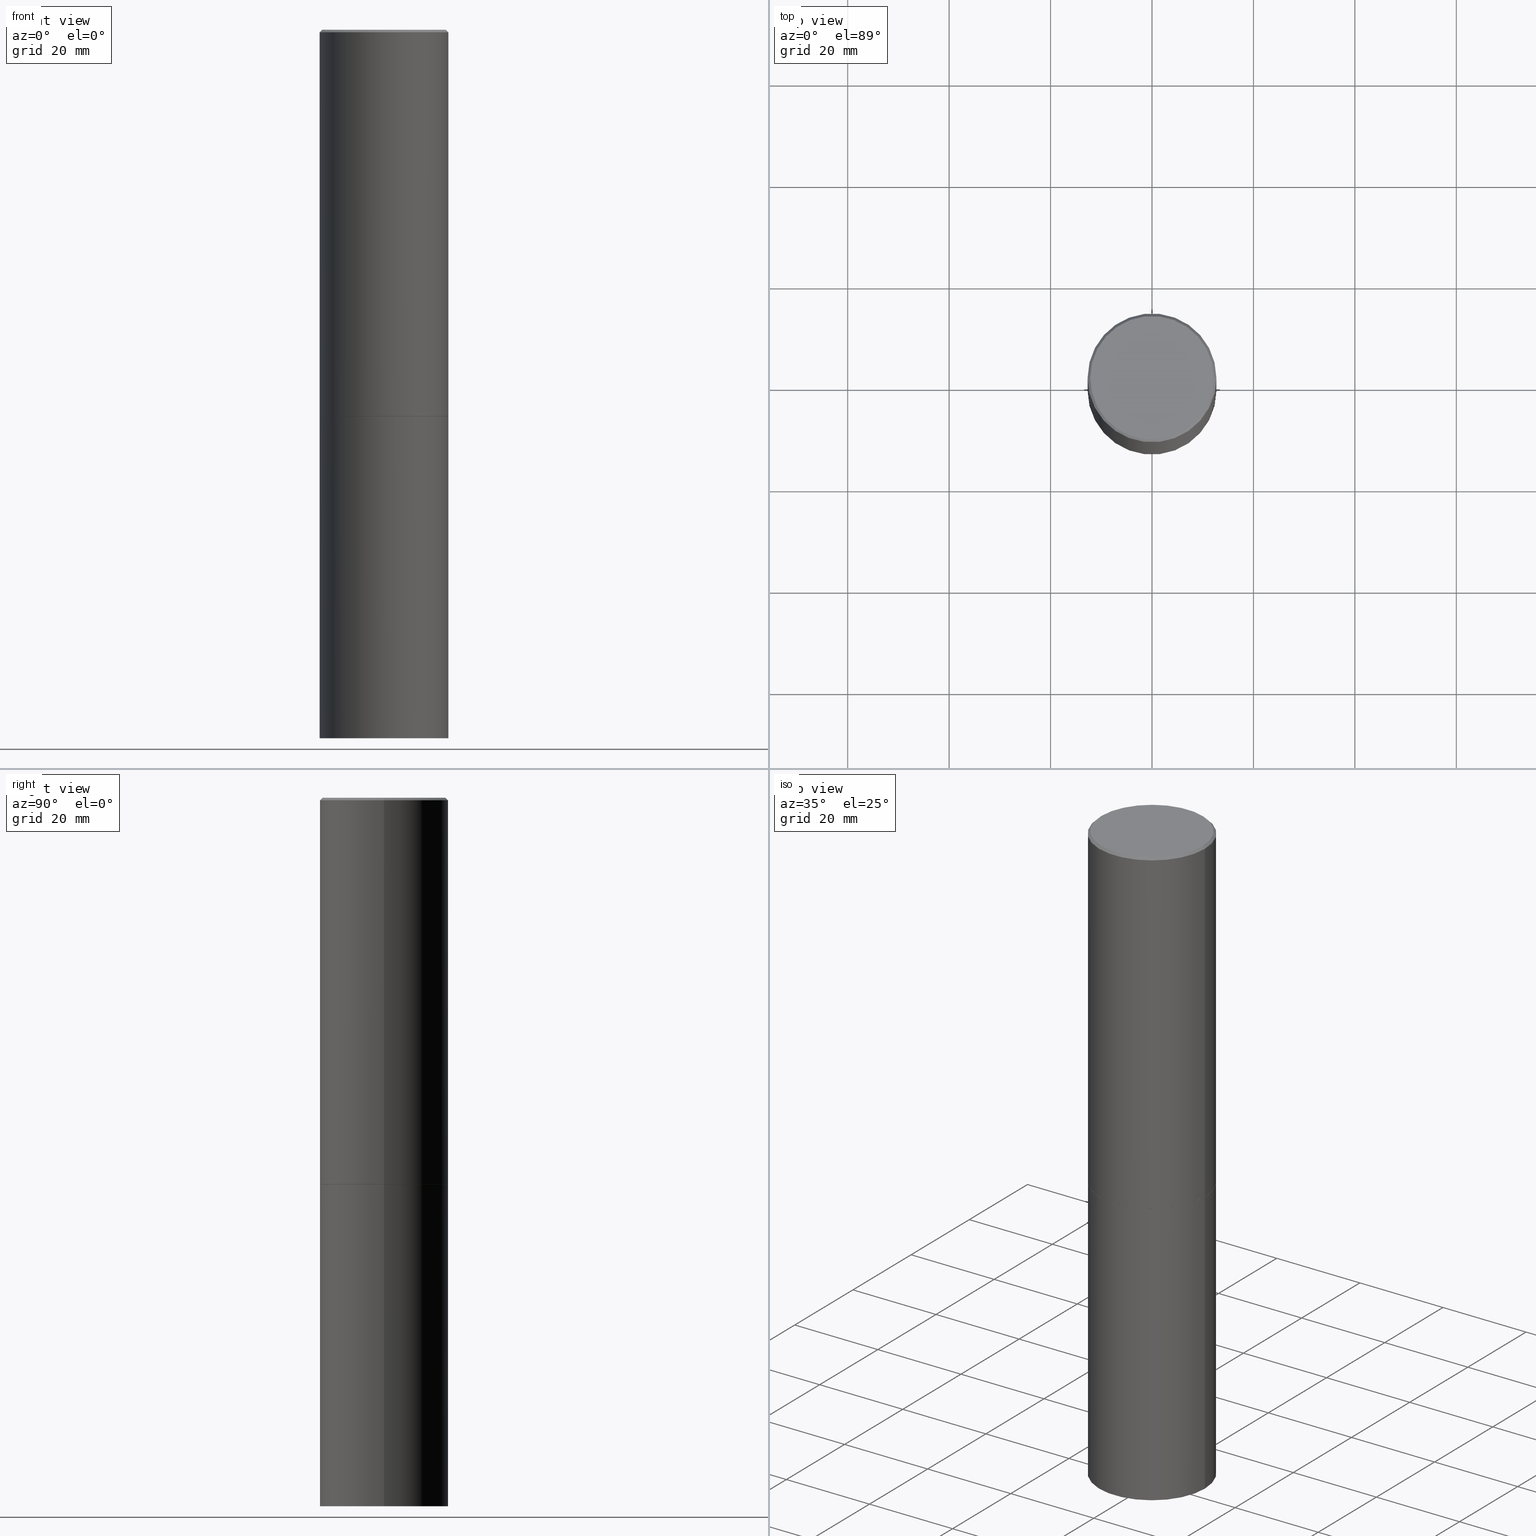
[diagram: canonical four-view strip — front | top / right | iso, engineering-drawing reading convention]
A machine part, canonical four-view strip (front | top / right | iso — engineering-drawing reading convention). The complete STEP part file that produces these views, byte-faithful:
ISO-10303-21;
HEADER;
FILE_DESCRIPTION (( 'STEP AP203' ),
    '1' );
FILE_NAME ('77293.STEP',
    '2024-02-29T18:16:07',
    ( '' ),
    ( '' ),
    'SwSTEP 2.0',
    'SolidWorks 2023',
    '' );
FILE_SCHEMA (( 'CONFIG_CONTROL_DESIGN' ));
ENDSEC;

DATA;
#1 = DATE_TIME_ROLE ( 'creation_date' ) ;
#2 = ORIENTED_EDGE ( 'NONE', *, *, #110, .T. ) ;
#3 = EDGE_CURVE ( 'NONE', #246, #50, #339, .T. ) ;
#4 = CIRCLE ( 'NONE', #21, 0.4999999999999997224 ) ;
#5 = CARTESIAN_POINT ( 'NONE',  ( 4.890937612370304688E-31, -6.982962677686335982E-17, -0.02000000000000012879 ) ) ;
#6 = FACE_OUTER_BOUND ( 'NONE', #57, .T. ) ;
#7 = ADVANCED_FACE ( 'NONE', ( #165 ), #28, .T. ) ;
#8 = CARTESIAN_POINT ( 'NONE',  ( 0.5000000000000000000, -3.491481338843133355E-15, 2.438088387897967896E-29 ) ) ;
#9 = FACE_OUTER_BOUND ( 'NONE', #107, .T. ) ;
#10 = CC_DESIGN_APPROVAL ( #146, ( #317 ) ) ;
#11 = CARTESIAN_POINT ( 'NONE',  ( -0.4799999999999996492, 3.386736898677836830E-15, 1.280553747027767124E-17 ) ) ;
#12 = CC_DESIGN_PERSON_AND_ORGANIZATION_ASSIGNMENT ( #79, #197, ( #296 ) ) ;
#13 = DIRECTION ( 'NONE',  ( -2.445468806185136597E-29, 3.491481338843145583E-15, 1.000000000000000000 ) ) ;
#14 = DIRECTION ( 'NONE',  ( -2.438088387897960049E-29, 3.491481338843145188E-15, 1.000000000000000000 ) ) ;
#15 = VECTOR ( 'NONE', #347, 39.37007874015748854 ) ;
#16 = LOCAL_TIME ( 13, 16, 7.000000000000000000, #277 ) ;
#17 = CARTESIAN_POINT ( 'NONE',  ( 0.4999999999999998335, -3.491481338843132566E-15, 2.438088387897967336E-29 ) ) ;
#18 = CC_DESIGN_PERSON_AND_ORGANIZATION_ASSIGNMENT ( #56, #310, ( #134 ) ) ;
#19 = CARTESIAN_POINT ( 'NONE',  ( 0.000000000000000000, 0.000000000000000000, 0.000000000000000000 ) ) ;
#20 = CARTESIAN_POINT ( 'NONE',  ( 3.491481338843206325E-15, 0.4999999999999895639, -3.000000000000001332 ) ) ;
#21 = AXIS2_PLACEMENT_3D ( 'NONE', #5, #89, #140 ) ;
#22 = APPROVAL_PERSON_ORGANIZATION ( #304, #326, #190 ) ;
#23 = DATE_AND_TIME ( #169, #349 ) ;
#24 = ORIENTED_EDGE ( 'NONE', *, *, #151, .T. ) ;
#25 = APPROVAL_DATE_TIME ( #23, #52 ) ;
#26 = VERTEX_POINT ( 'NONE', #60 ) ;
#27 = PERSON_AND_ORGANIZATION ( #144, #68 ) ;
#28 = CYLINDRICAL_SURFACE ( 'NONE', #336, 0.5000000000000000000 ) ;
#29 = CIRCLE ( 'NONE', #313, 0.5000000000000000000 ) ;
#30 = AXIS2_PLACEMENT_3D ( 'NONE', #156, #13, #236 ) ;
#31 = PERSON_AND_ORGANIZATION ( #144, #68 ) ;
#32 = VERTEX_POINT ( 'NONE', #11 ) ;
#33 = PERSON_AND_ORGANIZATION ( #144, #68 ) ;
#34 = EDGE_CURVE ( 'NONE', #198, #278, #122, .T. ) ;
#35 = VERTEX_POINT ( 'NONE', #40 ) ;
#36 = CARTESIAN_POINT ( 'NONE',  ( 0.4989999999999999991, -1.395894239269488369E-14, -2.999999999999999556 ) ) ;
#37 = CARTESIAN_POINT ( 'NONE',  ( -0.4999999999999998335, 3.552713678800499746E-15, -2.459467545127452330E-29 ) ) ;
#38 = CONICAL_SURFACE ( 'NONE', #125, 0.4989999999999999991, 0.7853981633978239785 ) ;
#39 = CARTESIAN_POINT ( 'NONE',  ( 3.351822085289405181E-15, 0.4799999999999996492, -1.669508273909558064E-15 ) ) ;
#40 = CARTESIAN_POINT ( 'NONE',  ( 0.4999999999999997224, -3.500078625662627502E-15, -0.02000000000000012879 ) ) ;
#41 = DIRECTION ( 'NONE',  ( -1.000000000000000000, 6.982962677686265922E-15, -4.876176775795935793E-29 ) ) ;
#42 = FACE_OUTER_BOUND ( 'NONE', #283, .T. ) ;
#43 = EDGE_CURVE ( 'NONE', #129, #364, #29, .T. ) ;
#44 = CARTESIAN_POINT ( 'NONE',  ( -0.4989999999999999991, -6.923537310738314819E-15, -2.999999999999999556 ) ) ;
#45 = DIRECTION ( 'NONE',  ( -2.445468806185136597E-29, 3.491481338843145583E-15, 1.000000000000000000 ) ) ;
#46 = AXIS2_PLACEMENT_3D ( 'NONE', #90, #92, #149 ) ;
#47 = ADVANCED_FACE ( 'NONE', ( #6 ), #359, .T. ) ;
#48 = DIRECTION ( 'NONE',  ( 1.000000000000000000, -6.982962677686269077E-15, 0.000000000000000000 ) ) ;
#49 = DIRECTION ( 'NONE',  ( -2.445468806185136597E-29, 3.491481338843145583E-15, 1.000000000000000000 ) ) ;
#50 = VERTEX_POINT ( 'NONE', #258 ) ;
#51 = SHAPE_DEFINITION_REPRESENTATION ( #189, #157 ) ;
#52 = APPROVAL ( #282, 'UNSPECIFIED' ) ;
#53 = CALENDAR_DATE ( 2024, 29, 2 ) ;
#54 = EDGE_LOOP ( 'NONE', ( #254, #130, #343, #332 ) ) ;
#55 = DIRECTION ( 'NONE',  ( -0.7071067811868130271, 7.493145998871311837E-15, 0.7071067811862817853 ) ) ;
#56 = PERSON_AND_ORGANIZATION ( #144, #68 ) ;
#57 = EDGE_LOOP ( 'NONE', ( #161, #266, #77, #225 ) ) ;
#58 = PERSON_AND_ORGANIZATION ( #144, #68 ) ;
#59 = ORIENTED_EDGE ( 'NONE', *, *, #204, .F. ) ;
#60 = CARTESIAN_POINT ( 'NONE',  ( 0.5000000000000000000, -2.269462870248043307E-14, -5.500000000000000000 ) ) ;
#61 = CARTESIAN_POINT ( 'NONE',  ( 0.000000000000000000, 0.000000000000000000, 0.000000000000000000 ) ) ;
#62 = SECURITY_CLASSIFICATION ( '', '', #280 ) ;
#63 = DIRECTION ( 'NONE',  ( -2.445468806185136877E-29, 3.491481338843145188E-15, 1.000000000000000000 ) ) ;
#64 = DIRECTION ( 'NONE',  ( -1.000000000000000000, 6.982962677686266711E-15, 0.000000000000000000 ) ) ;
#65 = DIRECTION ( 'NONE',  ( -2.445468806185136597E-29, 3.491481338843145583E-15, 1.000000000000000000 ) ) ;
#66 = EDGE_CURVE ( 'NONE', #50, #137, #260, .T. ) ;
#67 = LINE ( 'NONE', #17, #273 ) ;
#68 = ORGANIZATION ( 'UNSPECIFIED', 'UNSPECIFIED', '' ) ;
#69 = CARTESIAN_POINT ( 'NONE',  ( -0.4999999999999997224, 3.421651712066268085E-15, -0.02000000000000012879 ) ) ;
#70 = CARTESIAN_POINT ( 'NONE',  ( -3.131554243005659264E-46, 4.471029511141341874E-32, 1.280553747030123384E-17 ) ) ;
#71 = CARTESIAN_POINT ( 'NONE',  ( 0.5000000000000000000, -1.396243387403372828E-14, -2.999000000000000554 ) ) ;
#72 = DIRECTION ( 'NONE',  ( -2.445468806185136597E-29, 3.491481338843145583E-15, 1.000000000000000000 ) ) ;
#73 = ORIENTED_EDGE ( 'NONE', *, *, #180, .T. ) ;
#74 = DATE_AND_TIME ( #136, #102 ) ;
#75 = DIMENSIONAL_EXPONENTS ( 1.000000000000000000, 0.000000000000000000, 0.000000000000000000, 0.000000000000000000, 0.000000000000000000, 0.000000000000000000, 0.000000000000000000 ) ;
#76 = APPROVAL_STATUS ( 'not_yet_approved' ) ;
#77 = ORIENTED_EDGE ( 'NONE', *, *, #235, .T. ) ;
#78 = AXIS2_PLACEMENT_3D ( 'NONE', #211, #45, #355 ) ;
#79 = PERSON_AND_ORGANIZATION ( #144, #68 ) ;
#80 = DESIGN_CONTEXT ( 'detailed design', #162, 'design' ) ;
#81 = CARTESIAN_POINT ( 'NONE',  ( -0.4989999999999999991, -6.928835765086534855E-15, -2.999999999999999556 ) ) ;
#82 = ORIENTED_EDGE ( 'NONE', *, *, #163, .F. ) ;
#83 = ADVANCED_FACE ( 'NONE', ( #206 ), #286, .T. ) ;
#84 = MECHANICAL_CONTEXT ( 'NONE', #142, 'mechanical' ) ;
#85 = ORIENTED_EDGE ( 'NONE', *, *, #66, .T. ) ;
#86 = VECTOR ( 'NONE', #63, 39.37007874015748143 ) ;
#87 = ORIENTED_EDGE ( 'NONE', *, *, #34, .T. ) ;
#88 = PRODUCT_RELATED_PRODUCT_CATEGORY ( 'detail', '', ( #296 ) ) ;
#89 = DIRECTION ( 'NONE',  ( -2.445468806185136597E-29, 3.491481338843145583E-15, 1.000000000000000000 ) ) ;
#90 = CARTESIAN_POINT ( 'NONE',  ( 7.336406418555408669E-29, -1.047444401652943478E-14, -2.999999999999999556 ) ) ;
#91 = CARTESIAN_POINT ( 'NONE',  ( 4.890937612370304688E-31, -6.982962677686335982E-17, -0.02000000000000012879 ) ) ;
#92 = DIRECTION ( 'NONE',  ( -2.445468806185136597E-29, 3.491481338843145583E-15, 1.000000000000000000 ) ) ;
#93 = ADVANCED_FACE ( 'NONE', ( #120 ), #94, .F. ) ;
#94 = PLANE ( 'NONE',  #232 ) ;
#95 =( CONVERSION_BASED_UNIT ( 'INCH', #352 ) LENGTH_UNIT ( ) NAMED_UNIT ( #75 ) );
#96 = AXIS2_PLACEMENT_3D ( 'NONE', #229, #143, #288 ) ;
#97 = CIRCLE ( 'NONE', #194, 0.4799999999999996492 ) ;
#98 = EDGE_CURVE ( 'NONE', #26, #129, #233, .T. ) ;
#99 = LINE ( 'NONE', #69, #287 ) ;
#100 = CARTESIAN_POINT ( 'NONE',  ( 7.333960949749226429E-29, -1.047095253519059492E-14, -2.999000000000000554 ) ) ;
#101 = DIRECTION ( 'NONE',  ( -2.445468806185136597E-29, 3.491481338843145583E-15, 1.000000000000000000 ) ) ;
#102 = LOCAL_TIME ( 13, 16, 7.000000000000000000, #275 ) ;
#103 = CARTESIAN_POINT ( 'NONE',  ( 7.336406418555408669E-29, -1.047444401652943478E-14, -2.999999999999999556 ) ) ;
#104 = ADVANCED_FACE ( 'NONE', ( #176 ), #350, .T. ) ;
#105 = DATE_AND_TIME ( #365, #268 ) ;
#106 = ORIENTED_EDGE ( 'NONE', *, *, #110, .F. ) ;
#107 = EDGE_LOOP ( 'NONE', ( #59, #306, #2, #193 ) ) ;
#108 = AXIS2_PLACEMENT_3D ( 'NONE', #91, #172, #64 ) ;
#109 = CC_DESIGN_SECURITY_CLASSIFICATION ( #62, ( #134 ) ) ;
#110 = EDGE_CURVE ( 'NONE', #35, #137, #4, .T. ) ;
#111 = CARTESIAN_POINT ( 'NONE',  ( 0.000000000000000000, 0.000000000000000000, 0.000000000000000000 ) ) ;
#112 = APPROVAL_DATE_TIME ( #105, #326 ) ;
#113 = EDGE_LOOP ( 'NONE', ( #247, #311, #220, #281 ) ) ;
#114 = ORIENTED_EDGE ( 'NONE', *, *, #3, .T. ) ;
#115 = CC_DESIGN_DATE_AND_TIME_ASSIGNMENT ( #195, #1, ( #317 ) ) ;
#116 = LINE ( 'NONE', #290, #241 ) ;
#117 = DIRECTION ( 'NONE',  ( -1.000000000000000000, 6.982962677686266711E-15, 0.000000000000000000 ) ) ;
#118 = DIRECTION ( 'NONE',  ( -2.445468806185136597E-29, 3.491481338843145583E-15, 1.000000000000000000 ) ) ;
#119 = CIRCLE ( 'NONE', #338, 0.5000000000000000000 ) ;
#120 = FACE_OUTER_BOUND ( 'NONE', #276, .T. ) ;
#121 = CC_DESIGN_PERSON_AND_ORGANIZATION_ASSIGNMENT ( #31, #253, ( #62 ) ) ;
#122 = LINE ( 'NONE', #36, #15 ) ;
#123 = EDGE_CURVE ( 'NONE', #222, #35, #116, .T. ) ;
#124 = CLOSED_SHELL ( 'NONE', ( #7, #83, #309, #244 ) ) ;
#125 = AXIS2_PLACEMENT_3D ( 'NONE', #324, #264, #255 ) ;
#126 = CARTESIAN_POINT ( 'NONE',  ( 7.336406418555408669E-29, -1.047444401652943478E-14, -2.999999999999999556 ) ) ;
#127 = DIRECTION ( 'NONE',  ( -2.445468806185136597E-29, 3.491481338843145583E-15, 1.000000000000000000 ) ) ;
#128 = PLANE ( 'NONE',  #305 ) ;
#129 = VERTEX_POINT ( 'NONE', #320 ) ;
#130 = ORIENTED_EDGE ( 'NONE', *, *, #218, .T. ) ;
#131 = EDGE_CURVE ( 'NONE', #364, #129, #303, .T. ) ;
#132 = DIRECTION ( 'NONE',  ( 0.000000000000000000, 0.000000000000000000, 1.000000000000000000 ) ) ;
#133 = AXIS2_PLACEMENT_3D ( 'NONE', #178, #351, #117 ) ;
#134 = PRODUCT_DEFINITION_FORMATION_WITH_SPECIFIED_SOURCE ( 'ANY', '', #296, .NOT_KNOWN. ) ;
#135 = MANIFOLD_SOLID_BREP ( 'Body-Move/Copy2[2]', #159 ) ;
#136 = CALENDAR_DATE ( 2024, 29, 2 ) ;
#137 = VERTEX_POINT ( 'NONE', #177 ) ;
#138 = PERSON_AND_ORGANIZATION ( #144, #68 ) ;
#139 = ORIENTED_EDGE ( 'NONE', *, *, #238, .F. ) ;
#140 = DIRECTION ( 'NONE',  ( 1.000000000000000000, -6.982962677686266711E-15, 0.000000000000000000 ) ) ;
#141 = APPROVAL_PERSON_ORGANIZATION ( #27, #52, #272 ) ;
#142 = APPLICATION_CONTEXT ( 'configuration controlled 3d designs of mechanical parts and assemblies' ) ;
#143 = DIRECTION ( 'NONE',  ( 2.438088387897960049E-29, -3.491481338843145188E-15, -1.000000000000000000 ) ) ;
#144 = PERSON ( 'UNSPECIFIED', 'UNSPECIFIED', 'UNSPECIFIED', ('UNSPECIFIED'), ('UNSPECIFIED'), ('UNSPECIFIED') ) ;
#145 = CARTESIAN_POINT ( 'NONE',  ( 7.336406418555408669E-29, -1.047444401652943478E-14, -2.999999999999999556 ) ) ;
#146 = APPROVAL ( #76, 'UNSPECIFIED' ) ;
#147 = DIRECTION ( 'NONE',  ( 1.000000000000000000, -6.982962677686262766E-15, 0.000000000000000000 ) ) ;
#148 = CC_DESIGN_APPROVAL ( #326, ( #62 ) ) ;
#149 = DIRECTION ( 'NONE',  ( 1.000000000000000000, -6.982962677686269077E-15, 0.000000000000000000 ) ) ;
#150 = CARTESIAN_POINT ( 'NONE',  ( -0.5000000000000000000, -1.128608201128286632E-14, -2.999999999999999556 ) ) ;
#151 = EDGE_CURVE ( 'NONE', #26, #196, #209, .T. ) ;
#152 = DIRECTION ( 'NONE',  ( 1.000000000000000000, -6.982962677686262766E-15, 0.000000000000000000 ) ) ;
#153 = FACE_OUTER_BOUND ( 'NONE', #113, .T. ) ;
#154 = CYLINDRICAL_SURFACE ( 'NONE', #30, 0.4999999999999998335 ) ;
#155 = CC_DESIGN_PERSON_AND_ORGANIZATION_ASSIGNMENT ( #138, #248, ( #134 ) ) ;
#156 = CARTESIAN_POINT ( 'NONE',  ( 0.000000000000000000, 0.000000000000000000, 0.000000000000000000 ) ) ;
#157 = ADVANCED_BREP_SHAPE_REPRESENTATION ( '77293', ( #259, #135, #223 ), #174 ) ;
#158 = EDGE_LOOP ( 'NONE', ( #24, #327, #188, #227 ) ) ;
#159 = CLOSED_SHELL ( 'NONE', ( #192, #104, #171, #47, #214, #200, #301, #93 ) ) ;
#160 = CIRCLE ( 'NONE', #78, 0.5000000000000000000 ) ;
#161 = ORIENTED_EDGE ( 'NONE', *, *, #123, .F. ) ;
#162 = APPLICATION_CONTEXT ( 'configuration controlled 3d designs of mechanical parts and assemblies' ) ;
#163 = EDGE_CURVE ( 'NONE', #198, #246, #321, .T. ) ;
#164 = DATE_AND_TIME ( #337, #250 ) ;
#165 = FACE_OUTER_BOUND ( 'NONE', #158, .T. ) ;
#166 = APPROVAL_DATE_TIME ( #164, #146 ) ;
#167 = ORIENTED_EDGE ( 'NONE', *, *, #358, .T. ) ;
#168 = AXIS2_PLACEMENT_3D ( 'NONE', #103, #72, #48 ) ;
#169 = CALENDAR_DATE ( 2024, 29, 2 ) ;
#170 = ORIENTED_EDGE ( 'NONE', *, *, #218, .F. ) ;
#171 = ADVANCED_FACE ( 'NONE', ( #9 ), #256, .T. ) ;
#172 = DIRECTION ( 'NONE',  ( 2.445468806185136597E-29, -3.491481338843145583E-15, -1.000000000000000000 ) ) ;
#173 = DIRECTION ( 'NONE',  ( 1.000000000000000000, -6.982962677686266711E-15, 0.000000000000000000 ) ) ;
#174 =( GEOMETRIC_REPRESENTATION_CONTEXT ( 3 ) GLOBAL_UNCERTAINTY_ASSIGNED_CONTEXT ( ( #314 ) ) GLOBAL_UNIT_ASSIGNED_CONTEXT ( ( #95, #307, #340 ) ) REPRESENTATION_CONTEXT ( 'NONE', 'WORKASPACE' ) );
#175 = AXIS2_PLACEMENT_3D ( 'NONE', #19, #187, #295 ) ;
#176 = FACE_OUTER_BOUND ( 'NONE', #344, .T. ) ;
#177 = CARTESIAN_POINT ( 'NONE',  ( -0.4999999999999997224, 3.421651712066268085E-15, -0.02000000000000012879 ) ) ;
#178 = CARTESIAN_POINT ( 'NONE',  ( 4.890937612370304688E-31, -6.982962677686335982E-17, -0.02000000000000012879 ) ) ;
#179 = AXIS2_PLACEMENT_3D ( 'NONE', #181, #265, #152 ) ;
#180 = EDGE_CURVE ( 'NONE', #246, #198, #354, .T. ) ;
#181 = CARTESIAN_POINT ( 'NONE',  ( 1.345007843401824904E-28, -1.920314736363729972E-14, -5.500000000000000000 ) ) ;
#182 = FACE_OUTER_BOUND ( 'NONE', #341, .T. ) ;
#183 = EDGE_LOOP ( 'NONE', ( #252, #114, #318, #353 ) ) ;
#184 = CYLINDRICAL_SURFACE ( 'NONE', #175, 0.5000000000000000000 ) ;
#185 = DIRECTION ( 'NONE',  ( -2.445468806185136597E-29, 3.491481338843145583E-15, 1.000000000000000000 ) ) ;
#186 = CC_DESIGN_APPROVAL ( #52, ( #134 ) ) ;
#187 = DIRECTION ( 'NONE',  ( -2.445468806185136597E-29, 3.491481338843145583E-15, 1.000000000000000000 ) ) ;
#188 = ORIENTED_EDGE ( 'NONE', *, *, #43, .F. ) ;
#189 = PRODUCT_DEFINITION_SHAPE ( 'NONE', 'NONE',  #317 ) ;
#190 = APPROVAL_ROLE ( '' ) ;
#191 = PERSON_AND_ORGANIZATION_ROLE ( 'creator' ) ;
#192 = ADVANCED_FACE ( 'NONE', ( #207 ), #38, .T. ) ;
#193 = ORIENTED_EDGE ( 'NONE', *, *, #235, .F. ) ;
#194 = AXIS2_PLACEMENT_3D ( 'NONE', #70, #185, #331 ) ;
#195 = DATE_AND_TIME ( #53, #16 ) ;
#196 = VERTEX_POINT ( 'NONE', #319 ) ;
#197 = PERSON_AND_ORGANIZATION_ROLE ( 'design_owner' ) ;
#198 = VERTEX_POINT ( 'NONE', #239 ) ;
#199 = APPROVAL_ROLE ( '' ) ;
#200 = ADVANCED_FACE ( 'NONE', ( #182 ), #243, .T. ) ;
#201 = ORIENTED_EDGE ( 'NONE', *, *, #285, .F. ) ;
#202 = CARTESIAN_POINT ( 'NONE',  ( 7.336406418555408669E-29, -1.047444401652943478E-14, -2.999999999999999556 ) ) ;
#203 = DIRECTION ( 'NONE',  ( -2.445468806185136597E-29, 3.491481338843145583E-15, 1.000000000000000000 ) ) ;
#204 = EDGE_CURVE ( 'NONE', #222, #32, #97, .T. ) ;
#205 = AXIS2_PLACEMENT_3D ( 'NONE', #202, #65, #261 ) ;
#206 = FACE_OUTER_BOUND ( 'NONE', #366, .T. ) ;
#207 = FACE_OUTER_BOUND ( 'NONE', #183, .T. ) ;
#208 = CARTESIAN_POINT ( 'NONE',  ( 7.336406418555408669E-29, -1.047444401652943478E-14, -2.999999999999999556 ) ) ;
#209 = CIRCLE ( 'NONE', #363, 0.5000000000000000000 ) ;
#210 = APPROVAL_PERSON_ORGANIZATION ( #33, #146, #199 ) ;
#211 = CARTESIAN_POINT ( 'NONE',  ( 7.333960949749226429E-29, -1.047095253519059492E-14, -2.999000000000000554 ) ) ;
#212 = ORIENTED_EDGE ( 'NONE', *, *, #151, .F. ) ;
#213 =( LENGTH_UNIT ( ) NAMED_UNIT ( * ) SI_UNIT ( $, .METRE. ) );
#214 = ADVANCED_FACE ( 'NONE', ( #299 ), #154, .T. ) ;
#215 = VECTOR ( 'NONE', #230, 39.37007874015748143 ) ;
#216 = DIRECTION ( 'NONE',  ( -2.445468806185136877E-29, 3.491481338843145188E-15, 1.000000000000000000 ) ) ;
#217 = COORDINATED_UNIVERSAL_TIME_OFFSET ( 5, 0, .BEHIND. ) ;
#218 = EDGE_CURVE ( 'NONE', #50, #278, #160, .T. ) ;
#219 = APPLICATION_PROTOCOL_DEFINITION ( 'international standard', 'config_control_design', 1994, #142 ) ;
#220 = ORIENTED_EDGE ( 'NONE', *, *, #98, .T. ) ;
#221 = APPLICATION_PROTOCOL_DEFINITION ( 'international standard', 'config_control_design', 1994, #162 ) ;
#222 = VERTEX_POINT ( 'NONE', #360 ) ;
#223 = AXIS2_PLACEMENT_3D ( 'NONE', #342, #132, #245 ) ;
#224 = DIRECTION ( 'NONE',  ( -2.445468806185136597E-29, 3.491481338843145583E-15, 1.000000000000000000 ) ) ;
#225 = ORIENTED_EDGE ( 'NONE', *, *, #279, .T. ) ;
#226 = EDGE_CURVE ( 'NONE', #196, #364, #325, .T. ) ;
#227 = ORIENTED_EDGE ( 'NONE', *, *, #98, .F. ) ;
#228 = CIRCLE ( 'NONE', #298, 0.4799999999999996492 ) ;
#229 = CARTESIAN_POINT ( 'NONE',  ( 3.491481338843267462E-15, 0.4999999999999807931, -5.500000000000001776 ) ) ;
#230 = DIRECTION ( 'NONE',  ( -2.445468806185136877E-29, 3.491481338843145188E-15, 1.000000000000000000 ) ) ;
#231 = DIRECTION ( 'NONE',  ( -2.445468806185136597E-29, 3.491481338843145583E-15, 1.000000000000000000 ) ) ;
#232 = AXIS2_PLACEMENT_3D ( 'NONE', #39, #234, #41 ) ;
#233 = LINE ( 'NONE', #8, #215 ) ;
#234 = DIRECTION ( 'NONE',  ( 2.438088387897960049E-29, -3.491481338843145188E-15, -1.000000000000000000 ) ) ;
#235 = EDGE_CURVE ( 'NONE', #32, #137, #99, .T. ) ;
#236 = DIRECTION ( 'NONE',  ( 1.000000000000000000, -6.982962677686267499E-15, 4.876176775795936353E-29 ) ) ;
#237 = PLANE ( 'NONE',  #257 ) ;
#238 = EDGE_CURVE ( 'NONE', #278, #35, #67, .T. ) ;
#239 = CARTESIAN_POINT ( 'NONE',  ( 0.4989999999999999991, -1.395894239269488369E-14, -2.999999999999999556 ) ) ;
#240 = DIRECTION ( 'NONE',  ( -1.000000000000000000, 6.982962677686265922E-15, -4.876176775795935793E-29 ) ) ;
#241 = VECTOR ( 'NONE', #346, 39.37007874015748143 ) ;
#242 = DIRECTION ( 'NONE',  ( 1.000000000000000000, -6.982962677686267499E-15, 4.876036955247132767E-29 ) ) ;
#243 = CONICAL_SURFACE ( 'NONE', #168, 0.4989999999999999991, 0.7853981633978239785 ) ;
#244 = ADVANCED_FACE ( 'NONE', ( #153 ), #184, .T. ) ;
#245 = DIRECTION ( 'NONE',  ( 1.000000000000000000, 0.000000000000000000, 0.000000000000000000 ) ) ;
#246 = VERTEX_POINT ( 'NONE', #44 ) ;
#247 = ORIENTED_EDGE ( 'NONE', *, *, #226, .F. ) ;
#248 = PERSON_AND_ORGANIZATION_ROLE ( 'creator' ) ;
#249 = ORIENTED_EDGE ( 'NONE', *, *, #43, .T. ) ;
#250 = LOCAL_TIME ( 13, 16, 7.000000000000000000, #312 ) ;
#251 = APPROVAL_STATUS ( 'not_yet_approved' ) ;
#252 = ORIENTED_EDGE ( 'NONE', *, *, #163, .T. ) ;
#253 = PERSON_AND_ORGANIZATION_ROLE ( 'classification_officer' ) ;
#254 = ORIENTED_EDGE ( 'NONE', *, *, #66, .F. ) ;
#255 = DIRECTION ( 'NONE',  ( 1.000000000000000000, -6.982962677686269077E-15, 0.000000000000000000 ) ) ;
#256 = CONICAL_SURFACE ( 'NONE', #133, 0.4999999999999997224, 0.7853981633974463916 ) ;
#257 = AXIS2_PLACEMENT_3D ( 'NONE', #126, #14, #292 ) ;
#258 = CARTESIAN_POINT ( 'NONE',  ( -0.5000000000000000000, -1.717677402183226998E-15, -2.999000000000000554 ) ) ;
#259 = MANIFOLD_SOLID_BREP ( 'Body-Move/Copy2[1]', #124 ) ;
#260 = LINE ( 'NONE', #37, #86 ) ;
#261 = DIRECTION ( 'NONE',  ( 1.000000000000000000, -6.982962677686269077E-15, 0.000000000000000000 ) ) ;
#262 = VECTOR ( 'NONE', #55, 39.37007874015748854 ) ;
#263 = CIRCLE ( 'NONE', #291, 0.4999999999999997224 ) ;
#264 = DIRECTION ( 'NONE',  ( -2.445468806185136597E-29, 3.491481338843145583E-15, 1.000000000000000000 ) ) ;
#265 = DIRECTION ( 'NONE',  ( -2.445468806185136597E-29, 3.491481338843145583E-15, 1.000000000000000000 ) ) ;
#266 = ORIENTED_EDGE ( 'NONE', *, *, #348, .F. ) ;
#267 = AXIS2_PLACEMENT_3D ( 'NONE', #61, #345, #284 ) ;
#268 = LOCAL_TIME ( 13, 16, 7.000000000000000000, #302 ) ;
#269 = DIRECTION ( 'NONE',  ( 1.000000000000000000, -6.982962677686266711E-15, 0.000000000000000000 ) ) ;
#270 = DIRECTION ( 'NONE',  ( -2.445468806185136877E-29, 3.491481338843145188E-15, 1.000000000000000000 ) ) ;
#271 = DIRECTION ( 'NONE',  ( 1.000000000000000000, -6.982962677686266711E-15, 0.000000000000000000 ) ) ;
#272 = APPROVAL_ROLE ( '' ) ;
#273 = VECTOR ( 'NONE', #216, 39.37007874015748143 ) ;
#274 = ORIENTED_EDGE ( 'NONE', *, *, #204, .T. ) ;
#275 = COORDINATED_UNIVERSAL_TIME_OFFSET ( 5, 0, .BEHIND. ) ;
#276 = EDGE_LOOP ( 'NONE', ( #308, #274 ) ) ;
#277 = COORDINATED_UNIVERSAL_TIME_OFFSET ( 5, 0, .BEHIND. ) ;
#278 = VERTEX_POINT ( 'NONE', #71 ) ;
#279 = EDGE_CURVE ( 'NONE', #137, #35, #263, .T. ) ;
#280 = SECURITY_CLASSIFICATION_LEVEL ( 'unclassified' ) ;
#281 = ORIENTED_EDGE ( 'NONE', *, *, #131, .F. ) ;
#282 = APPROVAL_STATUS ( 'not_yet_approved' ) ;
#283 = EDGE_LOOP ( 'NONE', ( #82, #362 ) ) ;
#284 = DIRECTION ( 'NONE',  ( 1.000000000000000000, -6.982962677686267499E-15, 4.876176775795936353E-29 ) ) ;
#285 = EDGE_CURVE ( 'NONE', #196, #26, #330, .T. ) ;
#286 = PLANE ( 'NONE',  #96 ) ;
#287 = VECTOR ( 'NONE', #293, 39.37007874015748143 ) ;
#288 = DIRECTION ( 'NONE',  ( -1.000000000000000000, 6.982962677686265922E-15, -4.876176775795935793E-29 ) ) ;
#289 = CARTESIAN_POINT ( 'NONE',  ( 1.345007843401824904E-28, -1.920314736363729972E-14, -5.500000000000000000 ) ) ;
#290 = CARTESIAN_POINT ( 'NONE',  ( 0.4999999999999997224, -3.500078625662627502E-15, -0.02000000000000012879 ) ) ;
#291 = AXIS2_PLACEMENT_3D ( 'NONE', #328, #127, #269 ) ;
#292 = DIRECTION ( 'NONE',  ( 1.000000000000000000, -6.982962677686265922E-15, 4.876176775795935793E-29 ) ) ;
#293 = DIRECTION ( 'NONE',  ( -0.7071067811865461294, 2.468850131082242072E-15, -0.7071067811865489050 ) ) ;
#294 = ORIENTED_EDGE ( 'NONE', *, *, #131, .T. ) ;
#295 = DIRECTION ( 'NONE',  ( 1.000000000000000000, -6.982962677686266711E-15, 4.876176775795935793E-29 ) ) ;
#296 = PRODUCT ( '77293', '77293', '', ( #84 ) ) ;
#297 = AXIS2_PLACEMENT_3D ( 'NONE', #145, #231, #322 ) ;
#298 = AXIS2_PLACEMENT_3D ( 'NONE', #357, #101, #242 ) ;
#299 = FACE_OUTER_BOUND ( 'NONE', #54, .T. ) ;
#300 = FACE_OUTER_BOUND ( 'NONE', #361, .T. ) ;
#301 = ADVANCED_FACE ( 'NONE', ( #42 ), #237, .F. ) ;
#302 = COORDINATED_UNIVERSAL_TIME_OFFSET ( 5, 0, .BEHIND. ) ;
#303 = CIRCLE ( 'NONE', #297, 0.5000000000000000000 ) ;
#304 = PERSON_AND_ORGANIZATION ( #144, #68 ) ;
#305 = AXIS2_PLACEMENT_3D ( 'NONE', #20, #356, #240 ) ;
#306 = ORIENTED_EDGE ( 'NONE', *, *, #123, .T. ) ;
#307 =( NAMED_UNIT ( * ) PLANE_ANGLE_UNIT ( ) SI_UNIT ( $, .RADIAN. ) );
#308 = ORIENTED_EDGE ( 'NONE', *, *, #348, .T. ) ;
#309 = ADVANCED_FACE ( 'NONE', ( #300 ), #128, .F. ) ;
#310 = PERSON_AND_ORGANIZATION_ROLE ( 'design_supplier' ) ;
#311 = ORIENTED_EDGE ( 'NONE', *, *, #285, .T. ) ;
#312 = COORDINATED_UNIVERSAL_TIME_OFFSET ( 5, 0, .BEHIND. ) ;
#313 = AXIS2_PLACEMENT_3D ( 'NONE', #208, #203, #173 ) ;
#314 = UNCERTAINTY_MEASURE_WITH_UNIT (LENGTH_MEASURE( 1.000000000000000082E-05 ), #95, 'distance_accuracy_value', 'NONE');
#315 = DIRECTION ( 'NONE',  ( 1.000000000000000000, -6.982962677686266711E-15, 4.876176775795935793E-29 ) ) ;
#316 = VECTOR ( 'NONE', #270, 39.37007874015748143 ) ;
#317 = PRODUCT_DEFINITION ( 'UNKNOWN', '', #134, #80 ) ;
#318 = ORIENTED_EDGE ( 'NONE', *, *, #358, .F. ) ;
#319 = CARTESIAN_POINT ( 'NONE',  ( -0.5000000000000000000, -1.128608201128286632E-14, -5.500000000000000000 ) ) ;
#320 = CARTESIAN_POINT ( 'NONE',  ( 0.5000000000000000000, -1.396592535537256813E-14, -2.999999999999999556 ) ) ;
#321 = CIRCLE ( 'NONE', #205, 0.4989999999999999991 ) ;
#322 = DIRECTION ( 'NONE',  ( 1.000000000000000000, -6.982962677686266711E-15, 0.000000000000000000 ) ) ;
#323 = CC_DESIGN_DATE_AND_TIME_ASSIGNMENT ( #74, #334, ( #62 ) ) ;
#324 = CARTESIAN_POINT ( 'NONE',  ( 7.336406418555408669E-29, -1.047444401652943478E-14, -2.999999999999999556 ) ) ;
#325 = LINE ( 'NONE', #329, #316 ) ;
#326 = APPROVAL ( #251, 'UNSPECIFIED' ) ;
#327 = ORIENTED_EDGE ( 'NONE', *, *, #226, .T. ) ;
#328 = CARTESIAN_POINT ( 'NONE',  ( 4.890937612370304688E-31, -6.982962677686335982E-17, -0.02000000000000012879 ) ) ;
#329 = CARTESIAN_POINT ( 'NONE',  ( -0.5000000000000000000, 3.552713678800500929E-15, -2.459467545127452891E-29 ) ) ;
#330 = CIRCLE ( 'NONE', #179, 0.5000000000000000000 ) ;
#331 = DIRECTION ( 'NONE',  ( 1.000000000000000000, -6.982962677686267499E-15, 4.876036955247132767E-29 ) ) ;
#332 = ORIENTED_EDGE ( 'NONE', *, *, #279, .F. ) ;
#333 = CC_DESIGN_PERSON_AND_ORGANIZATION_ASSIGNMENT ( #58, #191, ( #317 ) ) ;
#334 = DATE_TIME_ROLE ( 'classification_date' ) ;
#335 = ORIENTED_EDGE ( 'NONE', *, *, #3, .F. ) ;
#336 = AXIS2_PLACEMENT_3D ( 'NONE', #111, #224, #315 ) ;
#337 = CALENDAR_DATE ( 2024, 29, 2 ) ;
#338 = AXIS2_PLACEMENT_3D ( 'NONE', #100, #49, #271 ) ;
#339 = LINE ( 'NONE', #81, #262 ) ;
#340 =( NAMED_UNIT ( * ) SI_UNIT ( $, .STERADIAN. ) SOLID_ANGLE_UNIT ( ) );
#341 = EDGE_LOOP ( 'NONE', ( #335, #73, #87, #170 ) ) ;
#342 = CARTESIAN_POINT ( 'NONE',  ( 0.000000000000000000, 0.000000000000000000, 0.000000000000000000 ) ) ;
#343 = ORIENTED_EDGE ( 'NONE', *, *, #238, .T. ) ;
#344 = EDGE_LOOP ( 'NONE', ( #167, #85, #106, #139 ) ) ;
#345 = DIRECTION ( 'NONE',  ( -2.445468806185136597E-29, 3.491481338843145583E-15, 1.000000000000000000 ) ) ;
#346 = DIRECTION ( 'NONE',  ( 0.7071067811865461294, -7.319954787623251312E-15, -0.7071067811865489050 ) ) ;
#347 = DIRECTION ( 'NONE',  ( 0.7071067811868130271, -2.468850131085038979E-15, 0.7071067811862817853 ) ) ;
#348 = EDGE_CURVE ( 'NONE', #32, #222, #228, .T. ) ;
#349 = LOCAL_TIME ( 13, 16, 7.000000000000000000, #217 ) ;
#350 = CYLINDRICAL_SURFACE ( 'NONE', #267, 0.4999999999999998335 ) ;
#351 = DIRECTION ( 'NONE',  ( 2.445468806185136597E-29, -3.491481338843145583E-15, -1.000000000000000000 ) ) ;
#352 = LENGTH_MEASURE_WITH_UNIT ( LENGTH_MEASURE( 0.02539999999999999897 ), #213 );
#353 = ORIENTED_EDGE ( 'NONE', *, *, #34, .F. ) ;
#354 = CIRCLE ( 'NONE', #46, 0.4989999999999999991 ) ;
#355 = DIRECTION ( 'NONE',  ( 1.000000000000000000, -6.982962677686266711E-15, 0.000000000000000000 ) ) ;
#356 = DIRECTION ( 'NONE',  ( 2.438088387897960049E-29, -3.491481338843145188E-15, -1.000000000000000000 ) ) ;
#357 = CARTESIAN_POINT ( 'NONE',  ( -3.131554243005659264E-46, 4.471029511141341874E-32, 1.280553747030123384E-17 ) ) ;
#358 = EDGE_CURVE ( 'NONE', #278, #50, #119, .T. ) ;
#359 = CONICAL_SURFACE ( 'NONE', #108, 0.4999999999999997224, 0.7853981633974463916 ) ;
#360 = CARTESIAN_POINT ( 'NONE',  ( 0.4799999999999996492, -3.396558832296480127E-15, 1.280553747032483033E-17 ) ) ;
#361 = EDGE_LOOP ( 'NONE', ( #249, #294 ) ) ;
#362 = ORIENTED_EDGE ( 'NONE', *, *, #180, .F. ) ;
#363 = AXIS2_PLACEMENT_3D ( 'NONE', #289, #118, #147 ) ;
#364 = VERTEX_POINT ( 'NONE', #150 ) ;
#365 = CALENDAR_DATE ( 2024, 29, 2 ) ;
#366 = EDGE_LOOP ( 'NONE', ( #212, #201 ) ) ;
ENDSEC;
END-ISO-10303-21;
